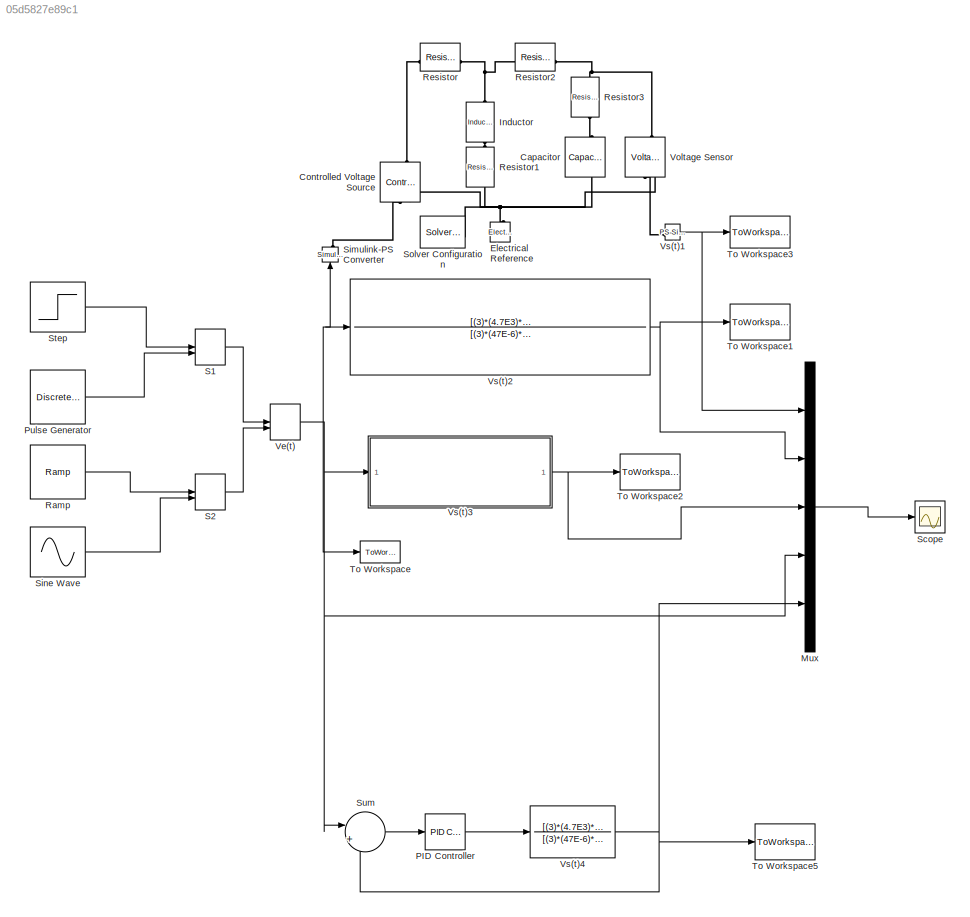
MODEL slx_05d5827e89c1
KIND model
CONFIG AbsTol = auto
CONFIG EnableMultiTasking = off
CONFIG FixedStep = auto
CONFIG MaxStep = 1E-3
CONFIG MinStep = auto
CONFIG RelTol = 1e-3
CONFIG SampleTimeConstraint = Unconstrained
CONFIG SolverName = ode23t
CONFIG StartTime = 0.0
CONFIG StopTime = 10.0
BLOCK [Reference] Capacitor  REF=ee_lib/Passive/Capacitor
  NameLocation = left
  SourceBlock = ee_lib/Passive/Capacitor
  SourceType = Capacitor
BLOCK [Reference] Controlled Voltage Source  REF=fl_lib/Electrical/Electrical Sources/Controlled Voltage
Source
  NameLocation = right
  SourceBlock = fl_lib/Electrical/Electrical Sources/Controlled Voltage\nSource
  SourceType = Controlled Voltage\nSource
BLOCK [Reference] Electrical Reference  REF=fl_lib/Electrical/Electrical Elements/Electrical Reference
  NameLocation = right
  SourceBlock = fl_lib/Electrical/Electrical Elements/Electrical Reference
  SourceType = Electrical Reference
BLOCK [Reference] Inductor  REF=ee_lib/Passive/Inductor
  NameLocation = left
  SourceBlock = ee_lib/Passive/Inductor
  SourceType = Inductor
BLOCK [Mux] Mux
  DisplayOption = bar
  Inputs = 5
BLOCK [Reference] PID Controller  REF=slpidlib/PID Controller
  LibrarySourceBlock = simulink/Continuous/PID Controller
  SourceBlock = slpidlib/PID Controller
  SourceType = PID 1dof
BLOCK [DiscretePulseGenerator] Pulse Generator
  Period = 10
  PhaseDelay = 1
  PulseType = Time based
  PulseWidth = 10
BLOCK [Reference] Ramp  REF=simulink/Sources/Ramp
  SourceBlock = simulink/Sources/Ramp
  SourceType = Ramp
BLOCK [Reference] Resistor  REF=ee_lib/Passive/Resistor
  SourceBlock = ee_lib/Passive/Resistor
  SourceType = Resistor
BLOCK [Reference] Resistor1  REF=ee_lib/Passive/Resistor
  NameLocation = left
  SourceBlock = ee_lib/Passive/Resistor
  SourceType = Resistor
BLOCK [Reference] Resistor2  REF=ee_lib/Passive/Resistor
  SourceBlock = ee_lib/Passive/Resistor
  SourceType = Resistor
BLOCK [Reference] Resistor3  REF=ee_lib/Passive/Resistor
  NameLocation = left
  SourceBlock = ee_lib/Passive/Resistor
  SourceType = Resistor
BLOCK [ManualSwitch] S1
  CurrentSetting = 0
BLOCK [ManualSwitch] S2
  CurrentSetting = 0
BLOCK [Scope] Scope
  Floating = off
  NumInputPorts = 1
  ScopeSpecificationString = Simulink.scopes.TimeScopeBlockCfg('CurrentConfiguration', extmgr.ConfigurationSet(extmgr.Configuration('Core','General UI',true,'FigureColor',[1 1 1]),extmgr.Configuration('Core','Source UI',true),extmgr.Configuration('Sources','WiredSimulink',true),extmgr.Configuration('Visuals','Time Domain',true,'SerializedDisplays',{struct('MinYLimReal','-1.25094','MaxYLimReal','1.25094','YLabelReal','','MinYL...<+2273ch>
BLOCK [Reference] Simulink-PS Converter  REF=nesl_utility/Simulink-PS
Converter
  NameLocation = right
  SourceBlock = nesl_utility/Simulink-PS\nConverter
  SourceType = Simulink-PS\nConverter
BLOCK [Sin] Sine Wave
  Frequency = pi/2
  SampleTime = 0
BLOCK [Reference] Solver Configuration  REF=nesl_utility/Solver
Configuration
  SourceBlock = nesl_utility/Solver\nConfiguration
  SourceType = Solver\nConfiguration
BLOCK [Step] Step
  Before = 1
  SampleTime = 0
  Time = 0
BLOCK [Sum] Sum
  Inputs = |+-
BLOCK [ToWorkspace] To Workspace
  FixptAsFi = on
  MaxDataPoints = inf
  SampleTime = -1
  VariableName = VE
BLOCK [ToWorkspace] To Workspace1
  FixptAsFi = on
  MaxDataPoints = inf
  SampleTime = -1
  VariableName = VS2
BLOCK [ToWorkspace] To Workspace2
  FixptAsFi = on
  MaxDataPoints = inf
  SampleTime = -1
  VariableName = VS3
BLOCK [ToWorkspace] To Workspace3
  FixptAsFi = on
  MaxDataPoints = inf
  SampleTime = -1
  VariableName = VS1
BLOCK [ToWorkspace] To Workspace5
  FixptAsFi = on
  MaxDataPoints = inf
  SampleTime = -1
  VariableName = PID
BLOCK [ManualSwitch] Ve(t)
  CurrentSetting = 0
BLOCK [Reference] Voltage Sensor  REF=fl_lib/Electrical/Electrical Sensors/Voltage Sensor
  NameLocation = right
  SourceBlock = fl_lib/Electrical/Electrical Sensors/Voltage Sensor
  SourceType = Voltage Sensor
BLOCK [Reference] Vs(t)1  REF=nesl_utility/PS-Simulink
Converter
  SourceBlock = nesl_utility/PS-Simulink\nConverter
  SourceType = PS-Simulink\nConverter
BLOCK [TransferFcn] Vs(t)2
  Denominator = [(3)*(47E-6)*(4.7E3)*(680E-6),(5)*(47E-6)*((4.7E3)^2)+(680E-6),(2)*(4.7E3)]
  Numerator = [(3)*(4.7E3)*(680E-6)*(47E-6),((47E-6)*((4.7E3)^2)+(680E-6)),(4.7E3)]
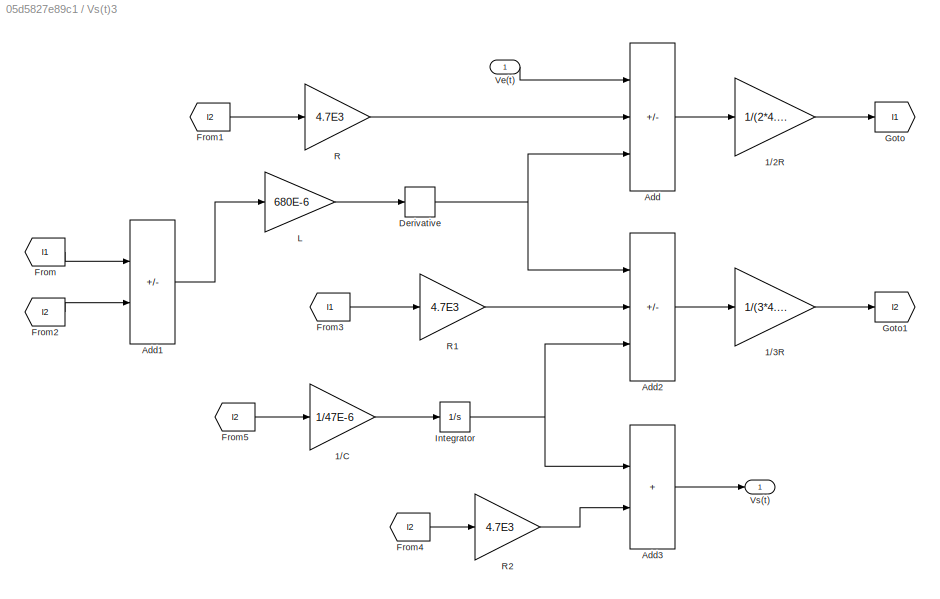
BLOCK [SubSystem] Vs(t)3
BLOCK [Gain] Vs(t)3/1//2R
  Gain = 1/(2*4.7E3)
BLOCK [Gain] Vs(t)3/1//3R
  Gain = 1/(3*4.7E3)
BLOCK [Gain] Vs(t)3/1//C
  Gain = 1/47E-6
BLOCK [Sum] Vs(t)3/Add
  IconShape = rectangular
  Inputs = ++-
BLOCK [Sum] Vs(t)3/Add1
  IconShape = rectangular
  Inputs = +-
BLOCK [Sum] Vs(t)3/Add2
  IconShape = rectangular
  Inputs = ++-
BLOCK [Sum] Vs(t)3/Add3
  IconShape = rectangular
BLOCK [Derivative] Vs(t)3/Derivative
BLOCK [From] Vs(t)3/From
  GotoTag = I1
BLOCK [From] Vs(t)3/From1
  GotoTag = I2
BLOCK [From] Vs(t)3/From2
  GotoTag = I2
BLOCK [From] Vs(t)3/From3
  GotoTag = I1
BLOCK [From] Vs(t)3/From4
  GotoTag = I2
BLOCK [From] Vs(t)3/From5
  GotoTag = I2
BLOCK [Goto] Vs(t)3/Goto
  GotoTag = I1
BLOCK [Goto] Vs(t)3/Goto1
  GotoTag = I2
BLOCK [Integrator] Vs(t)3/Integrator
BLOCK [Gain] Vs(t)3/L
  Gain = 680E-6
BLOCK [Gain] Vs(t)3/R
  Gain = 4.7E3
BLOCK [Gain] Vs(t)3/R1
  Gain = 4.7E3
BLOCK [Gain] Vs(t)3/R2
  Gain = 4.7E3
BLOCK [Inport] Vs(t)3/Ve(t)
BLOCK [Outport] Vs(t)3/Vs(t)
BLOCK [TransferFcn] Vs(t)4
  Denominator = [(3)*(47E-6)*(4.7E3)*(680E-6),(5)*(47E-6)*((4.7E3)^2)+(680E-6),(2)*(4.7E3)]
  Numerator = [(3)*(4.7E3)*(680E-6)*(47E-6),((47E-6)*((4.7E3)^2)+(680E-6)),(4.7E3)]
LINE Mux:1 -> Scope:1
LINE PID Controller:1 -> Vs(t)4:1
LINE Pulse Generator:1 -> S1:2
LINE Ramp:1 -> S2:1
LINE S1:1 -> Ve(t):1
LINE S2:1 -> Ve(t):2
LINE Sine Wave:1 -> S2:2
LINE Step:1 -> S1:1
LINE Sum:1 -> PID Controller:1
NET Ve(t):1 -> Mux:4, Simulink-PS Converter:1, Sum:1, To Workspace:1, Vs(t)2:1, Vs(t)3:1
NET Vs(t)1:1 -> Mux:1, To Workspace3:1
NET Vs(t)2:1 -> Mux:2, To Workspace1:1
LINE Vs(t)3/1//2R:1 -> Vs(t)3/Goto:1
LINE Vs(t)3/1//3R:1 -> Vs(t)3/Goto1:1
LINE Vs(t)3/1//C:1 -> Vs(t)3/Integrator:1
LINE Vs(t)3/Add1:1 -> Vs(t)3/L:1
LINE Vs(t)3/Add2:1 -> Vs(t)3/1//3R:1
LINE Vs(t)3/Add3:1 -> Vs(t)3/Vs(t):1
LINE Vs(t)3/Add:1 -> Vs(t)3/1//2R:1
NET Vs(t)3/Derivative:1 -> Vs(t)3/Add2:1, Vs(t)3/Add:3
LINE Vs(t)3/From1:1 -> Vs(t)3/R:1
LINE Vs(t)3/From2:1 -> Vs(t)3/Add1:2
LINE Vs(t)3/From3:1 -> Vs(t)3/R1:1
LINE Vs(t)3/From4:1 -> Vs(t)3/R2:1
LINE Vs(t)3/From5:1 -> Vs(t)3/1//C:1
LINE Vs(t)3/From:1 -> Vs(t)3/Add1:1
NET Vs(t)3/Integrator:1 -> Vs(t)3/Add2:3, Vs(t)3/Add3:1
LINE Vs(t)3/L:1 -> Vs(t)3/Derivative:1
LINE Vs(t)3/R1:1 -> Vs(t)3/Add2:2
LINE Vs(t)3/R2:1 -> Vs(t)3/Add3:2
LINE Vs(t)3/R:1 -> Vs(t)3/Add:2
LINE Vs(t)3/Ve(t):1 -> Vs(t)3/Add:1
NET Vs(t)3:1 -> Mux:3, To Workspace2:1
NET Vs(t)4:1 -> Mux:5, Sum:2, To Workspace5:1
PLINE Capacitor:LConn1 -- Resistor3:RConn1
PNET net1: Capacitor:RConn1 -- Controlled Voltage Source:RConn2 -- Electrical Reference:LConn1 -- Resistor1:RConn1 -- Solver Configuration:RConn1 -- Voltage Sensor:RConn2
PLINE Controlled Voltage Source:LConn1 -- Resistor:LConn1
PLINE Controlled Voltage Source:RConn1 -- Simulink-PS Converter:RConn1
PNET net2: Inductor:LConn1 -- Resistor2:LConn1 -- Resistor:RConn1
PLINE Inductor:RConn1 -- Resistor1:LConn1
PNET net3: Resistor2:RConn1 -- Resistor3:LConn1 -- Voltage Sensor:LConn1
PLINE Voltage Sensor:RConn1 -- Vs(t)1:LConn1
note: NET lines group one-source signal fan-out (src -> all destinations, sorted); 1:1 wires keep LINE; PNET lines group multi-terminal physical nets as a canonical sorted terminal list (undirected conserving connections); 2-terminal nets keep the pairwise PLINE form
